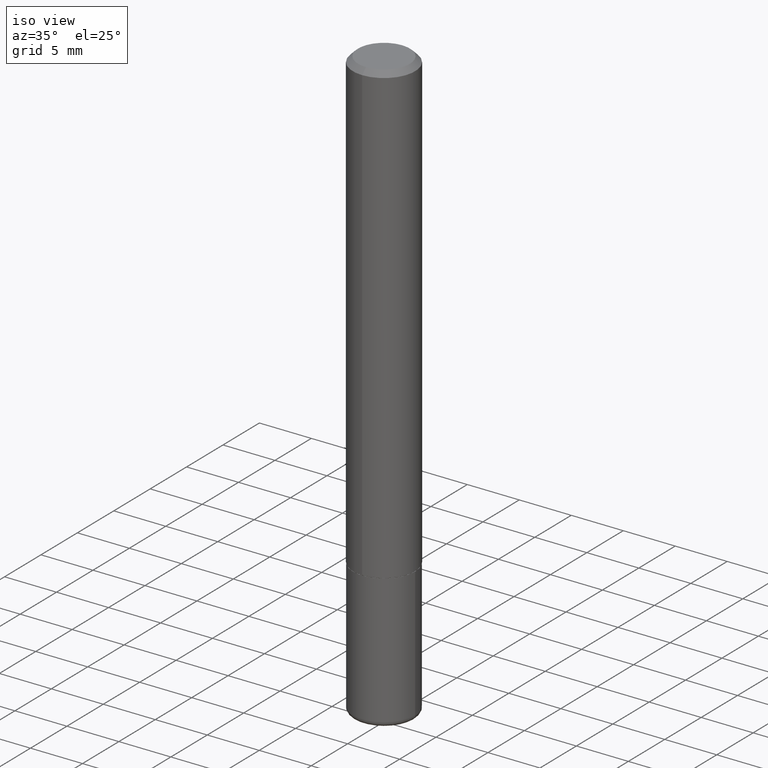
[diagram: clean part render]
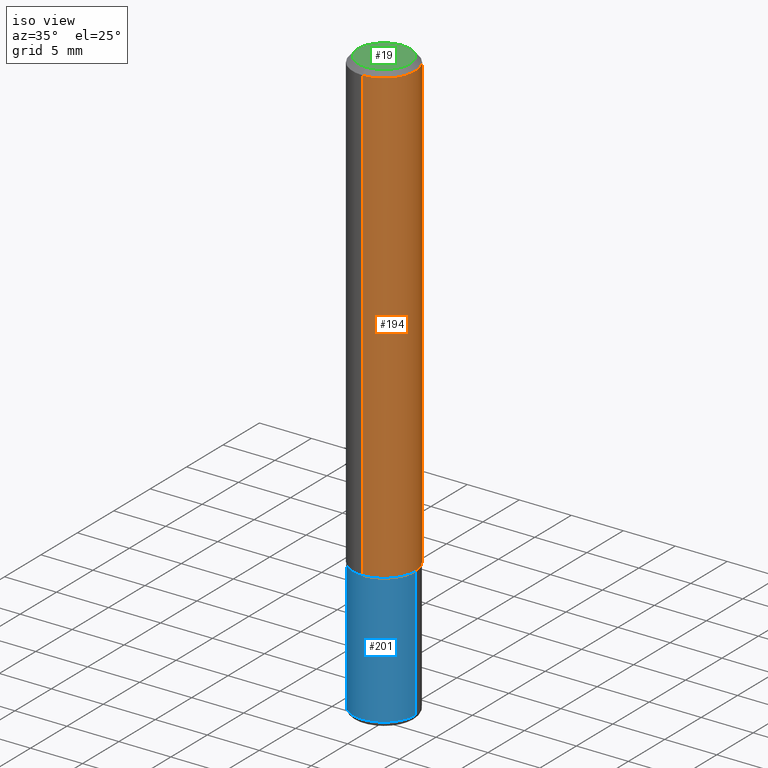
[diagram: same view with three faces highlighted in distinct colors, each labeled with its STEP entity id]
A machine part, iso view with three faces highlighted in distinct colors.
Their STEP definitions:

[orange] entity #194 — the highlighted cylindrical surface (partial cylindrical patch) has radius 2.9997 mm, axis along (-0, 0, 1).
#3 = CARTESIAN_POINT ( 'NONE',  ( 0.000000000000000000, 0.000000000000000000, 0.000000000000000000 ) ) ;
#4 = EDGE_CURVE ( 'NONE', #271, #364, #227, .T. ) ;
#13 = DIRECTION ( 'NONE',  ( -2.439979117146422706E-29, 3.499342886000279626E-15, 1.000000000000000000 ) ) ;
#27 = ORIENTED_EDGE ( 'NONE', *, *, #4, .F. ) ;
#39 = DIRECTION ( 'NONE',  ( -2.439979117146422425E-29, 3.499342886000280020E-15, 1.000000000000000000 ) ) ;
#42 = EDGE_CURVE ( 'NONE', #244, #364, #124, .T. ) ;
#69 = VECTOR ( 'NONE', #39, 39.37007874015748143 ) ;
#79 = DIRECTION ( 'NONE',  ( -6.982962677686265133E-15, -1.000000000000000000, 4.626330217890359081E-15 ) ) ;
#102 = CARTESIAN_POINT ( 'NONE',  ( -8.246878922347489529E-16, -0.1181000000000001354, 4.132723948366334846E-16 ) ) ;
#103 = CARTESIAN_POINT ( 'NONE',  ( -8.246878922347075377E-16, -0.1181000000000063110, -1.731299999999999173 ) ) ;
#112 = AXIS2_PLACEMENT_3D ( 'NONE', #313, #277, #79 ) ;
#124 = LINE ( 'NONE', #159, #69 ) ;
#132 = DIRECTION ( 'NONE',  ( -2.439979117146422425E-29, 3.499342886000280020E-15, 1.000000000000000000 ) ) ;
#147 = CARTESIAN_POINT ( 'NONE',  ( 4.879958234292863908E-31, -6.998685772000586467E-17, -0.02000000000000007674 ) ) ;
#149 = CARTESIAN_POINT ( 'NONE',  ( 8.246878922347486570E-16, 0.1180999999999999689, -0.02000000000000048961 ) ) ;
#150 = ORIENTED_EDGE ( 'NONE', *, *, #285, .F. ) ;
#159 = CARTESIAN_POINT ( 'NONE',  ( 8.391509709326791832E-16, 0.1181000000000001354, -4.132723948366334846E-16 ) ) ;
#161 = DIRECTION ( 'NONE',  ( -6.982962677686265922E-15, -1.000000000000000000, 3.499342886000279626E-15 ) ) ;
#187 = FACE_OUTER_BOUND ( 'NONE', #295, .T. ) ;
#194 = ADVANCED_FACE ( 'NONE', ( #187 ), #324, .T. ) ;
#195 = CARTESIAN_POINT ( 'NONE',  ( -8.102248135368175393E-16, -0.1181000000000001077, -0.01999999999999966388 ) ) ;
#227 = CIRCLE ( 'NONE', #289, 0.1181000000000000383 ) ;
#228 = CIRCLE ( 'NONE', #112, 0.1181000000000002603 ) ;
#242 = VERTEX_POINT ( 'NONE', #103 ) ;
#244 = VERTEX_POINT ( 'NONE', #394 ) ;
#271 = VERTEX_POINT ( 'NONE', #195 ) ;
#276 = DIRECTION ( 'NONE',  ( -2.439979117146422706E-29, 3.499342886000279626E-15, 1.000000000000000000 ) ) ;
#277 = DIRECTION ( 'NONE',  ( -2.439979117146422706E-29, 3.499342886000279626E-15, 1.000000000000000000 ) ) ;
#285 = EDGE_CURVE ( 'NONE', #242, #271, #396, .T. ) ;
#289 = AXIS2_PLACEMENT_3D ( 'NONE', #147, #276, #341 ) ;
#295 = EDGE_LOOP ( 'NONE', ( #398, #410, #27, #150 ) ) ;
#301 = AXIS2_PLACEMENT_3D ( 'NONE', #3, #13, #161 ) ;
#313 = CARTESIAN_POINT ( 'NONE',  ( 4.224335845515600924E-29, -6.058412338532283405E-15, -1.731299999999999617 ) ) ;
#324 = CYLINDRICAL_SURFACE ( 'NONE', #301, 0.1181000000000001354 ) ;
#341 = DIRECTION ( 'NONE',  ( -6.982962677686265922E-15, -1.000000000000000000, 3.505890868245044514E-15 ) ) ;
#354 = VECTOR ( 'NONE', #132, 39.37007874015748143 ) ;
#364 = VERTEX_POINT ( 'NONE', #149 ) ;
#368 = EDGE_CURVE ( 'NONE', #242, #244, #228, .T. ) ;
#394 = CARTESIAN_POINT ( 'NONE',  ( 8.391509709327010740E-16, 0.1180999999999942096, -1.731300000000000283 ) ) ;
#396 = LINE ( 'NONE', #102, #354 ) ;
#398 = ORIENTED_EDGE ( 'NONE', *, *, #368, .T. ) ;
#410 = ORIENTED_EDGE ( 'NONE', *, *, #42, .T. ) ;

[blue] entity #201 — the highlighted cylindrical surface (partial cylindrical patch) has radius 2.9997 mm, axis along (-0, 0, 1).
#37 = CARTESIAN_POINT ( 'NONE',  ( 5.439700812478218014E-29, -7.766451090122692732E-15, -2.224399999999999711 ) ) ;
#38 = EDGE_CURVE ( 'NONE', #168, #334, #128, .T. ) ;
#45 = VECTOR ( 'NONE', #306, 39.37007874015748143 ) ;
#60 = CARTESIAN_POINT ( 'NONE',  ( -0.1181000000000000522, -6.927300119190015324E-15, -2.224399999999999711 ) ) ;
#64 = EDGE_CURVE ( 'NONE', #168, #231, #184, .T. ) ;
#68 = DIRECTION ( 'NONE',  ( -2.445468806185136597E-29, 3.491481338843145583E-15, 1.000000000000000000 ) ) ;
#73 = DIRECTION ( 'NONE',  ( -2.445468806185136597E-29, 3.491481338843145583E-15, 1.000000000000000000 ) ) ;
#80 = ORIENTED_EDGE ( 'NONE', *, *, #226, .F. ) ;
#94 = DIRECTION ( 'NONE',  ( 1.000000000000000000, -6.982962677686262766E-15, 0.000000000000000000 ) ) ;
#109 = LINE ( 'NONE', #302, #45 ) ;
#122 = DIRECTION ( 'NONE',  ( -2.445468806185136597E-29, 3.491481338843145583E-15, 1.000000000000000000 ) ) ;
#127 = AXIS2_PLACEMENT_3D ( 'NONE', #37, #122, #94 ) ;
#128 = LINE ( 'NONE', #154, #163 ) ;
#154 = CARTESIAN_POINT ( 'NONE',  ( -0.1181000000000000383, 8.391509709326785915E-16, -5.809262341591045886E-30 ) ) ;
#157 = DIRECTION ( 'NONE',  ( -2.445468806185136877E-29, 3.491481338843145188E-15, 1.000000000000000000 ) ) ;
#162 = ORIENTED_EDGE ( 'NONE', *, *, #401, .T. ) ;
#163 = VECTOR ( 'NONE', #157, 39.37007874015748143 ) ;
#167 = CARTESIAN_POINT ( 'NONE',  ( -0.1181000000000000383, -6.068221135767657525E-15, -1.732299999999999729 ) ) ;
#168 = VERTEX_POINT ( 'NONE', #60 ) ;
#170 = ORIENTED_EDGE ( 'NONE', *, *, #64, .T. ) ;
#184 = CIRCLE ( 'NONE', #127, 0.1181000000000000383 ) ;
#199 = CARTESIAN_POINT ( 'NONE',  ( 4.236285612954511832E-29, -6.048293123277980289E-15, -1.732299999999999729 ) ) ;
#201 = ADVANCED_FACE ( 'NONE', ( #225 ), #260, .T. ) ;
#206 = VERTEX_POINT ( 'NONE', #297 ) ;
#225 = FACE_OUTER_BOUND ( 'NONE', #246, .T. ) ;
#226 = EDGE_CURVE ( 'NONE', #334, #206, #281, .T. ) ;
#229 = CARTESIAN_POINT ( 'NONE',  ( 0.1181000000000000522, -8.591138982357440995E-15, -2.224399999999999711 ) ) ;
#231 = VERTEX_POINT ( 'NONE', #229 ) ;
#246 = EDGE_LOOP ( 'NONE', ( #402, #170, #162, #80 ) ) ;
#255 = AXIS2_PLACEMENT_3D ( 'NONE', #199, #73, #294 ) ;
#260 = CYLINDRICAL_SURFACE ( 'NONE', #358, 0.1181000000000000383 ) ;
#281 = CIRCLE ( 'NONE', #255, 0.1181000000000000383 ) ;
#294 = DIRECTION ( 'NONE',  ( 1.000000000000000000, -6.982962677686270655E-15, 0.000000000000000000 ) ) ;
#297 = CARTESIAN_POINT ( 'NONE',  ( 0.1181000000000000383, -6.872981015512729341E-15, -1.732299999999999729 ) ) ;
#302 = CARTESIAN_POINT ( 'NONE',  ( 0.1181000000000000383, -8.246878922347483612E-16, 5.758764772215001842E-30 ) ) ;
#306 = DIRECTION ( 'NONE',  ( -2.445468806185136877E-29, 3.491481338843145188E-15, 1.000000000000000000 ) ) ;
#334 = VERTEX_POINT ( 'NONE', #167 ) ;
#358 = AXIS2_PLACEMENT_3D ( 'NONE', #390, #68, #361 ) ;
#361 = DIRECTION ( 'NONE',  ( 1.000000000000000000, -6.982962677686266711E-15, 4.876176775795935793E-29 ) ) ;
#390 = CARTESIAN_POINT ( 'NONE',  ( 0.000000000000000000, 0.000000000000000000, 0.000000000000000000 ) ) ;
#401 = EDGE_CURVE ( 'NONE', #231, #206, #109, .T. ) ;
#402 = ORIENTED_EDGE ( 'NONE', *, *, #38, .F. ) ;

[green] entity #19 — the highlighted planar face has unit normal (0, -0, -1).
#9 = DIRECTION ( 'NONE',  ( -2.439979117146422706E-29, 3.499342886000279626E-15, 1.000000000000000000 ) ) ;
#19 = ADVANCED_FACE ( 'NONE', ( #356 ), #323, .F. ) ;
#24 = CIRCLE ( 'NONE', #119, 0.09809999999999970133 ) ;
#41 = CARTESIAN_POINT ( 'NONE',  ( 7.548582654578846686E-16, 0.09809999999999970133, -5.225547001368359954E-17 ) ) ;
#61 = CARTESIAN_POINT ( 'NONE',  ( -7.101072861929026047E-45, 1.018413994928867138E-30, 2.910300671029427939E-16 ) ) ;
#88 = ORIENTED_EDGE ( 'NONE', *, *, #125, .T. ) ;
#93 = DIRECTION ( 'NONE',  ( -2.439979117146422706E-29, 3.499342886000279626E-15, 1.000000000000000000 ) ) ;
#100 = DIRECTION ( 'NONE',  ( -6.982962677686265922E-15, -1.000000000000000000, 3.499342886000279626E-15 ) ) ;
#101 = CARTESIAN_POINT ( 'NONE',  ( -7.101072861929026047E-45, 1.018413994928867138E-30, 2.910300671029427939E-16 ) ) ;
#111 = AXIS2_PLACEMENT_3D ( 'NONE', #320, #126, #258 ) ;
#119 = AXIS2_PLACEMENT_3D ( 'NONE', #101, #9, #100 ) ;
#125 = EDGE_CURVE ( 'NONE', #392, #278, #343, .T. ) ;
#126 = DIRECTION ( 'NONE',  ( 2.439979117146422145E-29, -3.499342886000280020E-15, -1.000000000000000000 ) ) ;
#188 = DIRECTION ( 'NONE',  ( -6.982962677686265922E-15, -1.000000000000000000, 3.499342886000279626E-15 ) ) ;
#219 = AXIS2_PLACEMENT_3D ( 'NONE', #61, #93, #188 ) ;
#223 = EDGE_CURVE ( 'NONE', #278, #392, #24, .T. ) ;
#234 = EDGE_LOOP ( 'NONE', ( #339, #88 ) ) ;
#240 = CARTESIAN_POINT ( 'NONE',  ( -7.416198335591013204E-16, -0.09809999999999970133, 6.343156042195691812E-16 ) ) ;
#258 = DIRECTION ( 'NONE',  ( 6.982962677686265922E-15, 1.000000000000000000, -3.499342886000280020E-15 ) ) ;
#278 = VERTEX_POINT ( 'NONE', #41 ) ;
#320 = CARTESIAN_POINT ( 'NONE',  ( 6.850286386810205815E-16, 0.09809999999999970133, -1.977705035651549903E-16 ) ) ;
#323 = PLANE ( 'NONE',  #111 ) ;
#339 = ORIENTED_EDGE ( 'NONE', *, *, #223, .T. ) ;
#343 = CIRCLE ( 'NONE', #219, 0.09809999999999970133 ) ;
#356 = FACE_OUTER_BOUND ( 'NONE', #234, .T. ) ;
#392 = VERTEX_POINT ( 'NONE', #240 ) ;